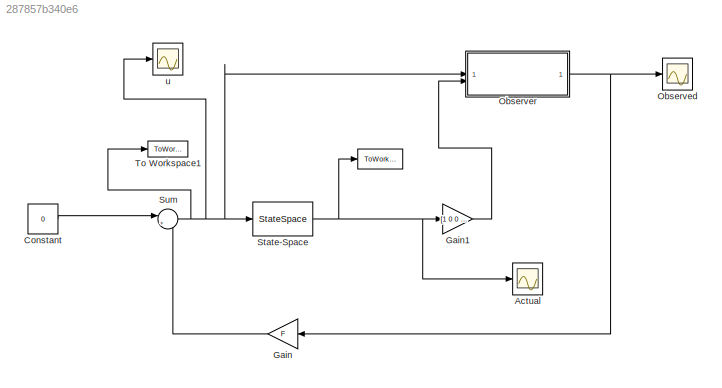
MODEL slx_287857b340e6
KIND model
CONFIG AbsTol = auto
CONFIG EnableMultiTasking = off
CONFIG FixedStep = auto
CONFIG MaxStep = auto
CONFIG MinStep = auto
CONFIG RelTol = 1e-3
CONFIG SampleTimeConstraint = Unconstrained
CONFIG SolverName = ode45
CONFIG StartTime = 0.0
CONFIG StopTime = 10.0
BLOCK [ToWorkspace]   
  FixptAsFi = on
  MaxDataPoints = inf
  SampleTime = -1
  Save2DSignal = 2-D array (concatenate along first dimension)
  VariableName = x
BLOCK [Scope] Actual
  Floating = off
  NumInputPorts = 1
  ScopeSpecificationString = Simulink.scopes.TimeScopeBlockCfg('CurrentConfiguration', extmgr.ConfigurationSet(extmgr.Configuration('Core','General UI',true),extmgr.Configuration('Core','Source UI',true),extmgr.Configuration('Sources','WiredSimulink',true,'DataLoggingVariableName','ScopeData1'),extmgr.Configuration('Visuals','Time Domain',true,'SerializedDisplays',{struct('MinYLimReal','-1.33292','MaxYLimReal','1.08065','YLab...<+1460ch>
BLOCK [Constant] Constant
  Value = 0
BLOCK [Gain] Gain
  Gain = F
  Multiplication = Matrix(K*u)
  NameLocation = top
BLOCK [Gain] Gain1
  Gain = [1 0 0 0; 0 0 1 0]
  Multiplication = Matrix(K*u)
BLOCK [Scope] Observed
  Floating = off
  NumInputPorts = 1
  ScopeSpecificationString = Simulink.scopes.TimeScopeBlockCfg('CurrentConfiguration', extmgr.ConfigurationSet(extmgr.Configuration('Core','General UI',true),extmgr.Configuration('Core','Source UI',true),extmgr.Configuration('Sources','WiredSimulink',true),extmgr.Configuration('Visuals','Time Domain',true,'SerializedDisplays',{struct('MinYLimReal','-1.14833','MaxYLimReal','5.41289','YLabelReal','','MinYLimMag','0.00000','MaxY...<+1400ch>
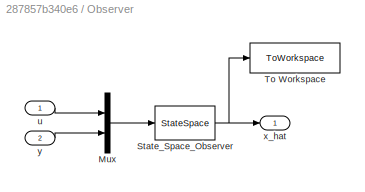
BLOCK [SubSystem] Observer
BLOCK [Mux] Observer/Mux
  DisplayOption = bar
  Inputs = 2
BLOCK [StateSpace] Observer/State_Space_Observer
  A = A-K_fast*C
  B = [B K_fast]
  C = eye(4)
  D = zeros(4,3)
  InitialCondition = 0
BLOCK [ToWorkspace] Observer/To Workspace
  FixptAsFi = on
  MaxDataPoints = inf
  SampleTime = -1
  VariableName = x_hat
BLOCK [Inport] Observer/u
BLOCK [Outport] Observer/x_hat
BLOCK [Inport] Observer/y
  Port = 2
BLOCK [StateSpace] State-Space
  A = A
  B = B
  C = eye(4)
  D = D
  InitialCondition = x_0
  ParameterTunability = Unconstrained
BLOCK [Sum] Sum
  Inputs = |++
BLOCK [ToWorkspace] To Workspace1
  FixptAsFi = on
  MaxDataPoints = inf
  SampleTime = -1
  Save2DSignal = 2-D array (concatenate along first dimension)
  VariableName = u
BLOCK [Scope] u
  Floating = off
  NumInputPorts = 1
  ScopeSpecificationString = Simulink.scopes.TimeScopeBlockCfg('CurrentConfiguration', extmgr.ConfigurationSet(extmgr.Configuration('Core','General UI',true),extmgr.Configuration('Core','Source UI',true),extmgr.Configuration('Sources','WiredSimulink',true,'DataLoggingVariableName','ScopeData2'),extmgr.Configuration('Visuals','Time Domain',true,'SerializedDisplays',{struct('MinYLimReal','-16.21574','MaxYLimReal','13.86943','YL...<+1436ch>
LINE Constant:1 -> Sum:1
LINE Gain1:1 -> Observer:2
LINE Gain:1 -> Sum:2
LINE Observer/Mux:1 -> Observer/State_Space_Observer:1
NET Observer/State_Space_Observer:1 -> Observer/To Workspace:1, Observer/x_hat:1
LINE Observer/u:1 -> Observer/Mux:1
LINE Observer/y:1 -> Observer/Mux:2
NET Observer:1 -> Gain:1, Observed:1
NET State-Space:1 ->   :1, Actual:1, Gain1:1
NET Sum:1 -> Observer:1, State-Space:1, To Workspace1:1, u:1
note: NET lines group one-source signal fan-out (src -> all destinations, sorted); 1:1 wires keep LINE
